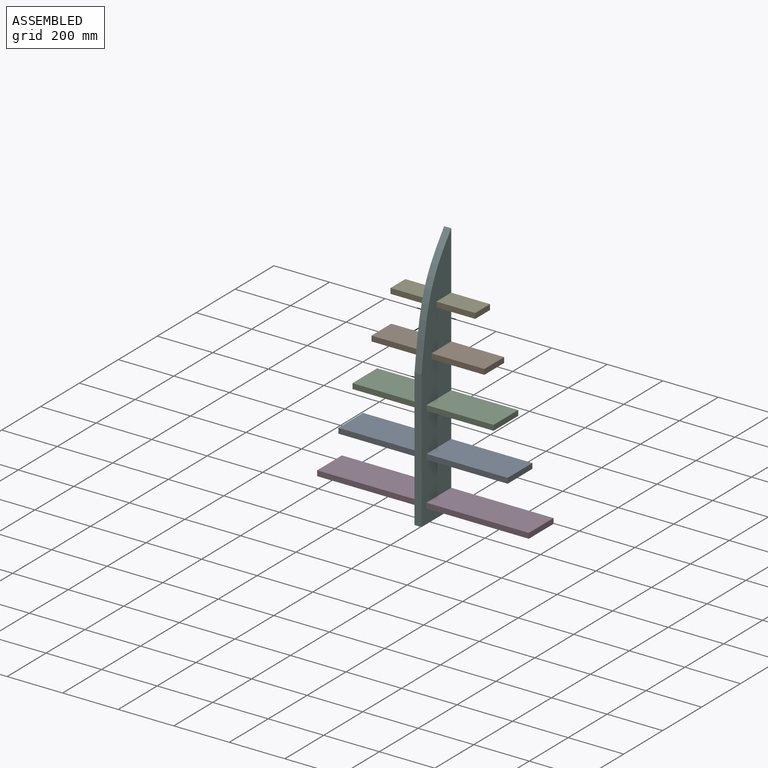
[diagram: assembled view]
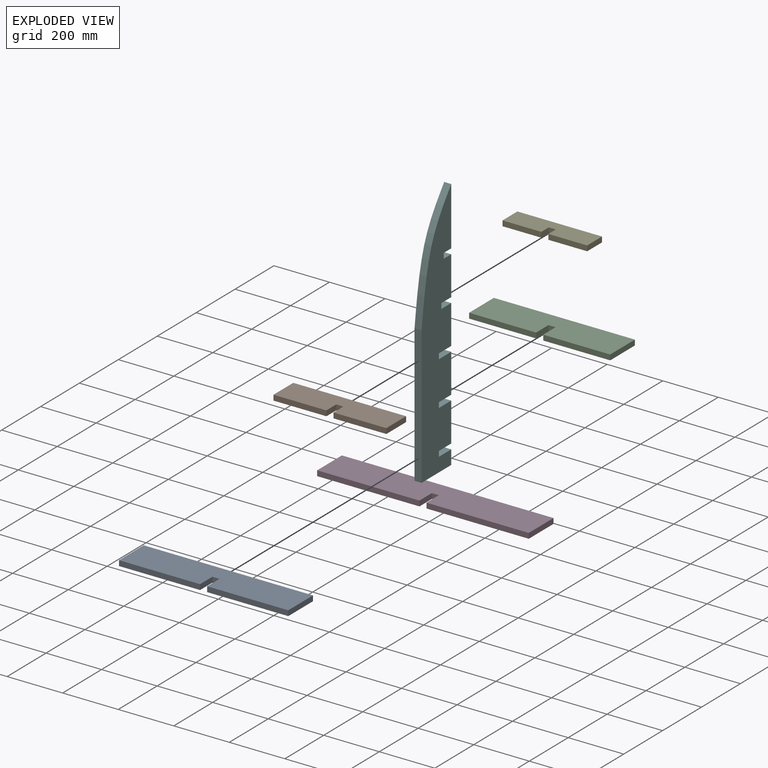
[diagram: exploded view]
GUIDED TOUR — MATED ASSEMBLY (Onshape document f6a99f685c1723dabd99fce3, AutoMate assembly f6a99f685c1723dabd99fce3_4dc6c312e2f48edcb0dcd2f4_e3d09a4b84ab226564b0cf3a_default)

This assembly has 6 components, labeled P0..P5 below (a component is one placed occurrence of a part; the same part can appear more than once), held together by 5 mates. A mate is a constraint between two components; its type names the relative motion it leaves free:
  PLANAR — leaves sliding in the plane through the listed point (normal = the listed direction) and rotation about that normal free.
Axis/direction vectors are unit vectors and 'through' points are millimeter coordinates, both in the assembly's world frame.

MATES
  1. PLANAR "Planar 1": P3 <-> P5, direction (0.000, -1.000, 0.000) through (12.70, 12.70, -396.88) mm
  2. PLANAR "Planar 4": P1 <-> P5, direction (0.000, -1.000, 0.000) through (12.70, 25.40, 79.37) mm
  3. PLANAR "Planar 5": P4 <-> P5, direction (0.000, -1.000, 0.000) through (12.70, 38.10, 238.12) mm
  4. PLANAR "Planar 2": P0 <-> P5, direction (0.000, -1.000, 0.000) through (12.70, 12.70, -238.13) mm
  5. PLANAR "Planar 3": P2 <-> P5, direction (0.000, -1.000, 0.000) through (12.70, 12.70, -79.38) mm

ASSEMBLY ORDER
  1. P3 — the base component [order verified]
  2. P0 [order verified]
  3. P2 [order verified]
  4. P5 [order verified]
  5. P1 [order verified]
  6. P4 [order verified]
Order-tag legend:
  [order verified] — this step's position reverses a verified removal order: the component was checked to insert without passing through the ones already placed.

Of the 6 components, 1 carries the full construction recipe — the FeatureScript program that regenerates the part's solid from scratch; the rest are supplied as boundary geometry only.
Each toured component is shown spotlighted twice — in the assembled view, then in the exploded view, where a leader line traces a displaced component back to its assembled socket (saturated green if recipe-attached, orange if geometry-only; every other component desaturated gray) — followed by its recipe or geometry summary and the mates that hold it.
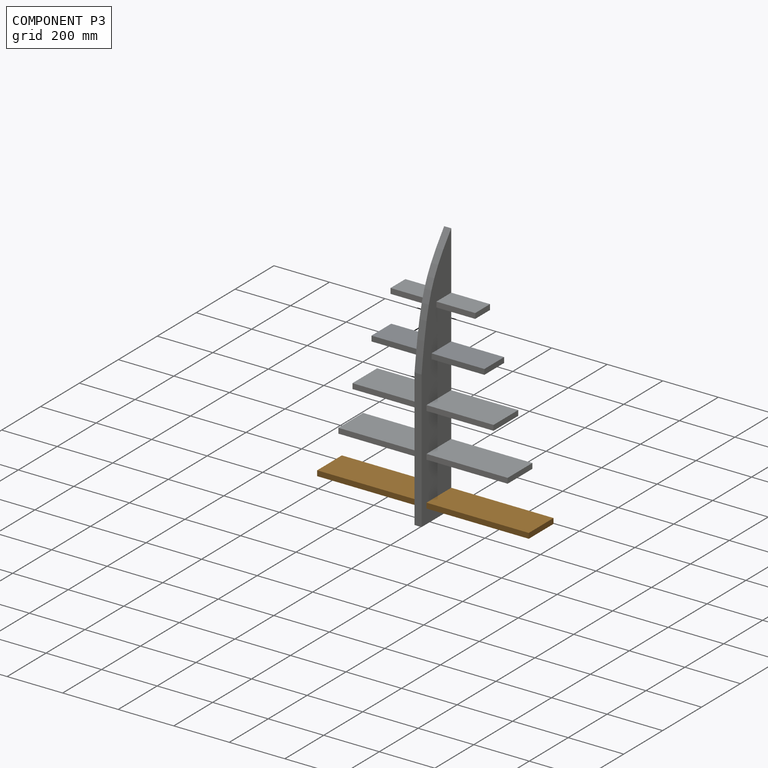
[diagram: component P3 — assembled]
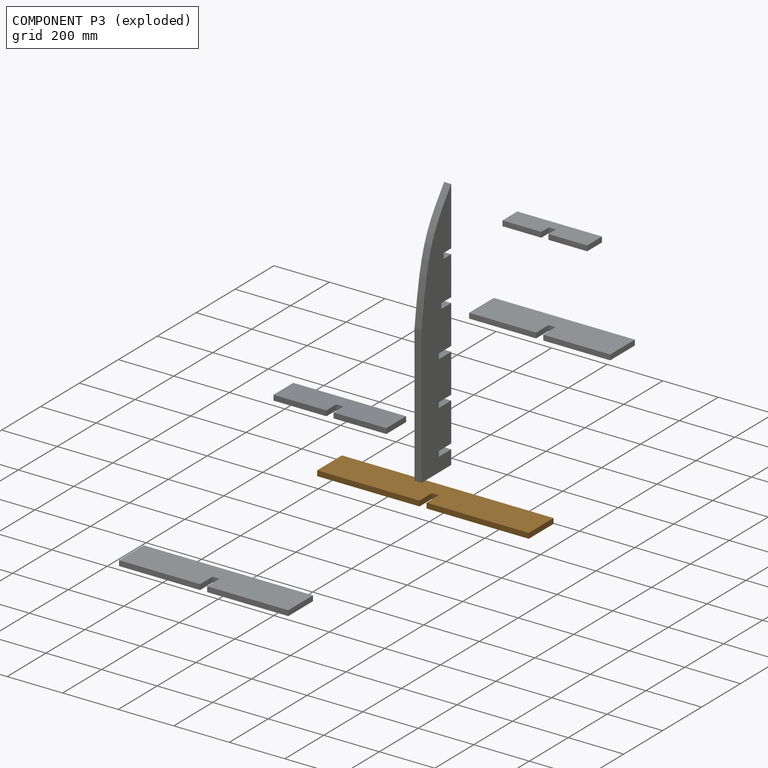
[diagram: component P3 — exploded]
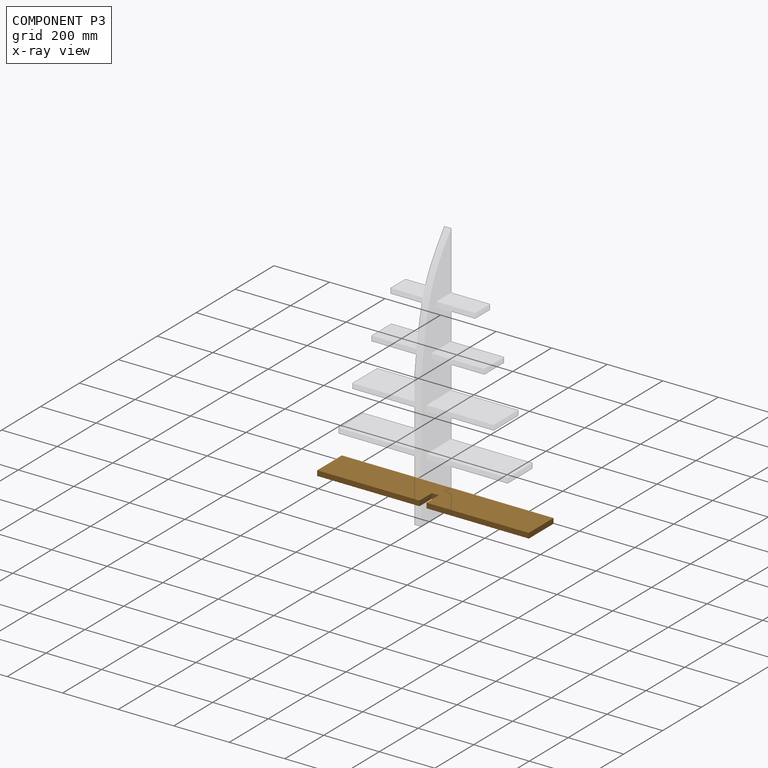
[diagram: component P3 — x-ray view]
COMPONENT P3 — geometry summary (no construction recipe available for this part):
  bounding box: 762.0 x 127.0 x 19.1 mm
  B-rep topology: 1 solid, 10 faces, 48 edges
  volume: 1812819 mm^3 (98% of its bounding box)
  symmetry: 2-fold rotationally symmetric about the y axis; mirror-symmetric across its x mid-plane, z mid-plane
Held by: PLANAR mate "Planar 1" to P5.
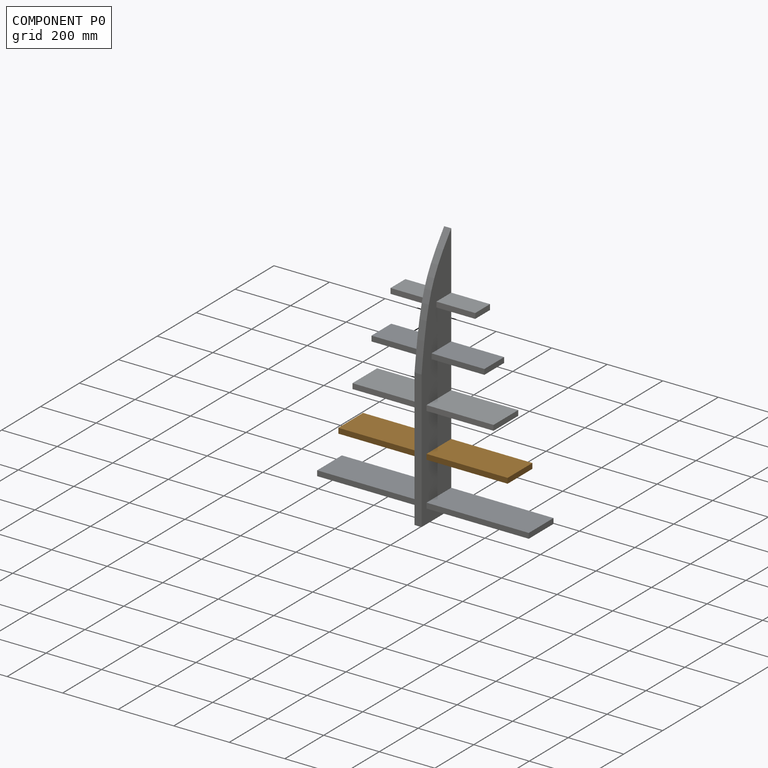
[diagram: component P0 — assembled]
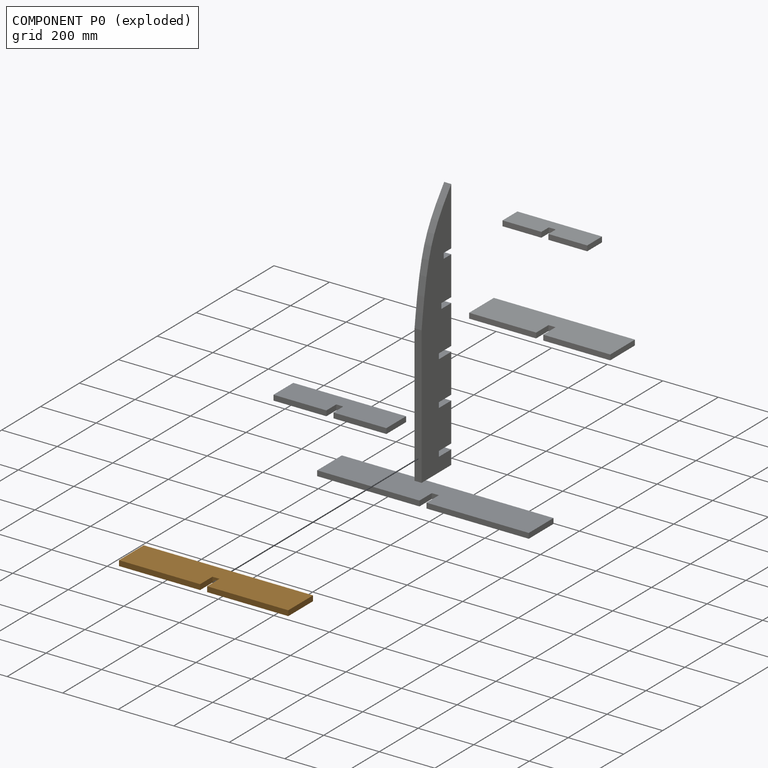
[diagram: component P0 — exploded]
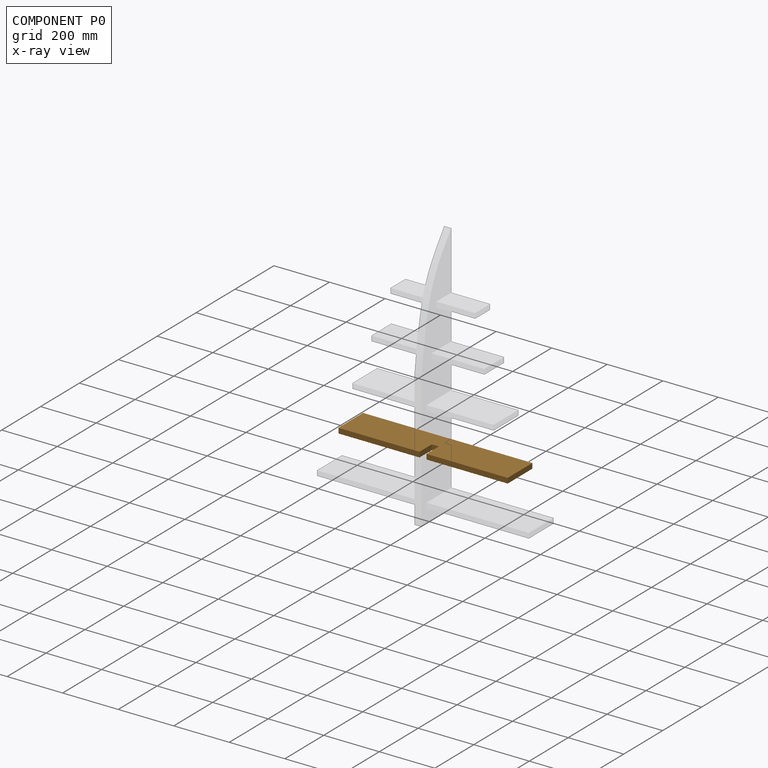
[diagram: component P0 — x-ray view]
COMPONENT P0 — geometry summary (no construction recipe available for this part):
  bounding box: 609.6 x 127.0 x 19.1 mm
  B-rep topology: 1 solid, 10 faces, 48 edges
  volume: 1444110 mm^3 (98% of its bounding box)
  symmetry: 2-fold rotationally symmetric about the y axis; mirror-symmetric across its x mid-plane, z mid-plane
Held by: PLANAR mate "Planar 2" to P5.
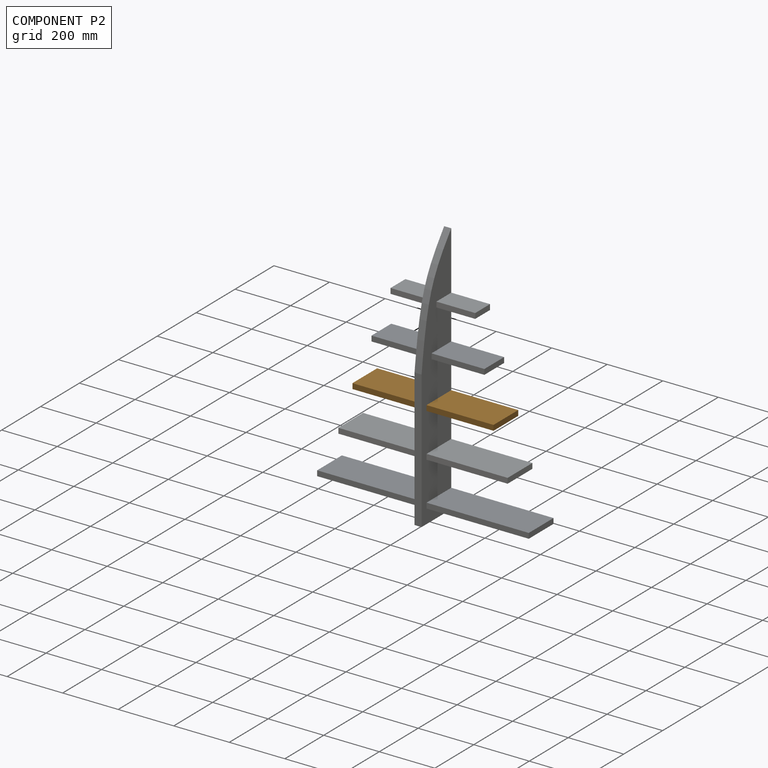
[diagram: component P2 — assembled]
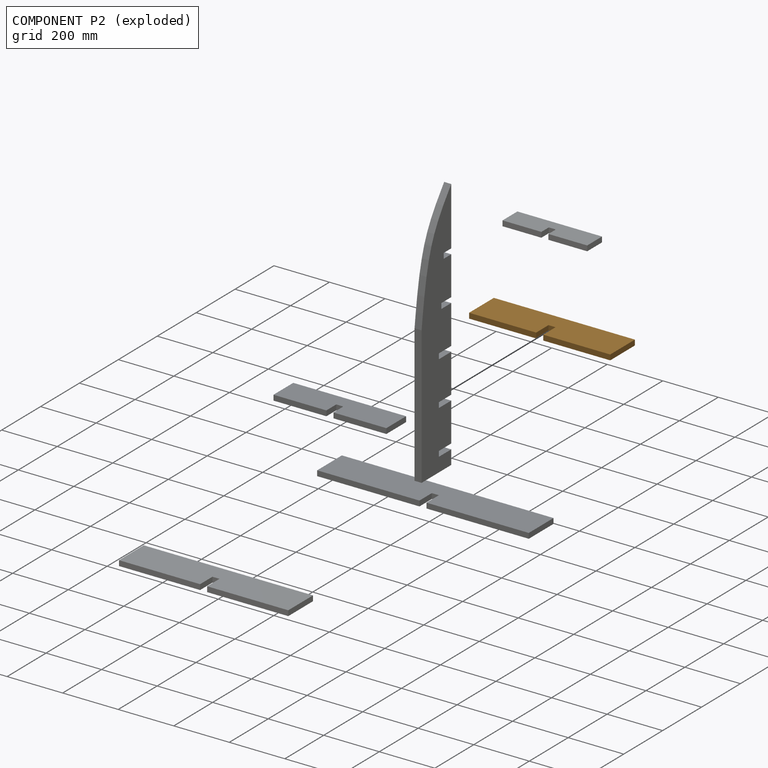
[diagram: component P2 — exploded]
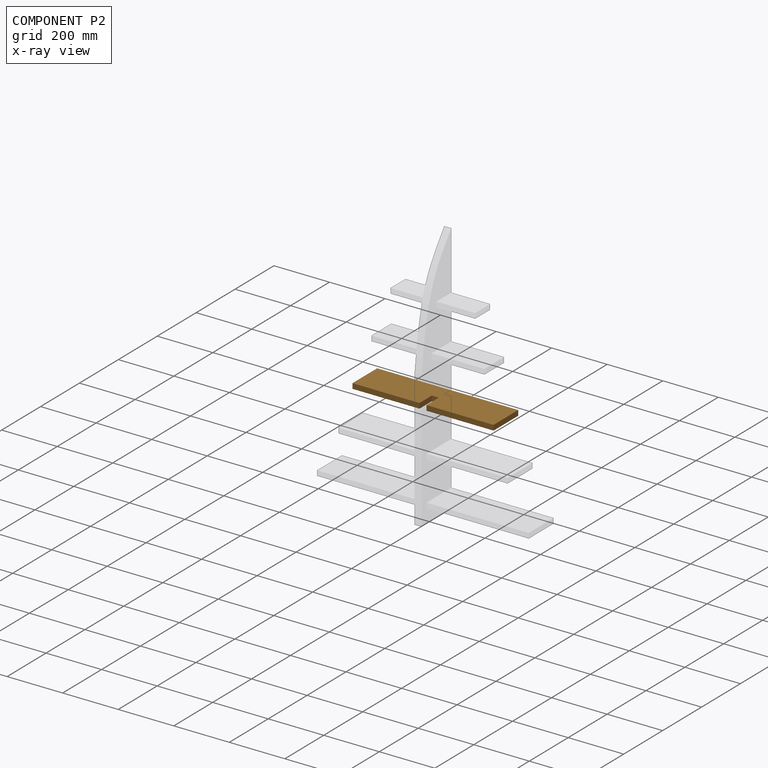
[diagram: component P2 — x-ray view]
COMPONENT P2 — geometry summary (no construction recipe available for this part):
  bounding box: 508.0 x 127.0 x 19.1 mm
  B-rep topology: 1 solid, 10 faces, 48 edges
  volume: 1198304 mm^3 (97% of its bounding box)
  symmetry: 2-fold rotationally symmetric about the y axis; mirror-symmetric across its x mid-plane, z mid-plane
Held by: PLANAR mate "Planar 3" to P5.
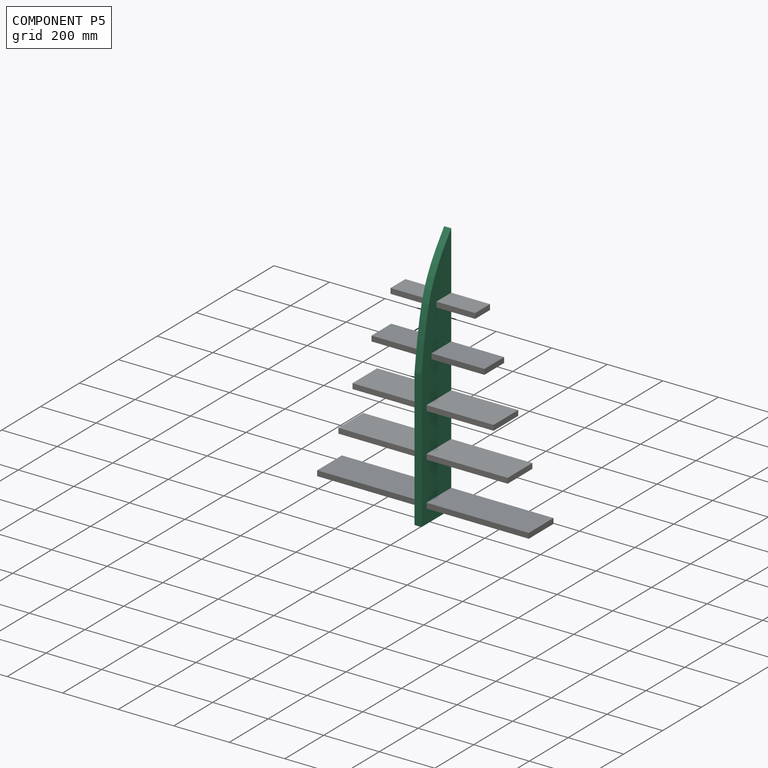
[diagram: component P5 — assembled]
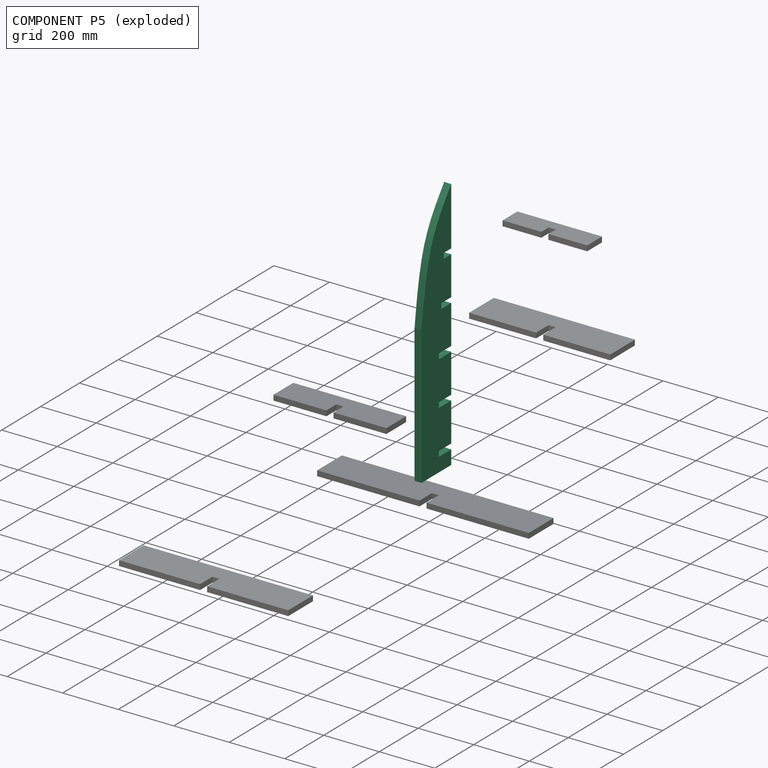
[diagram: component P5 — exploded]
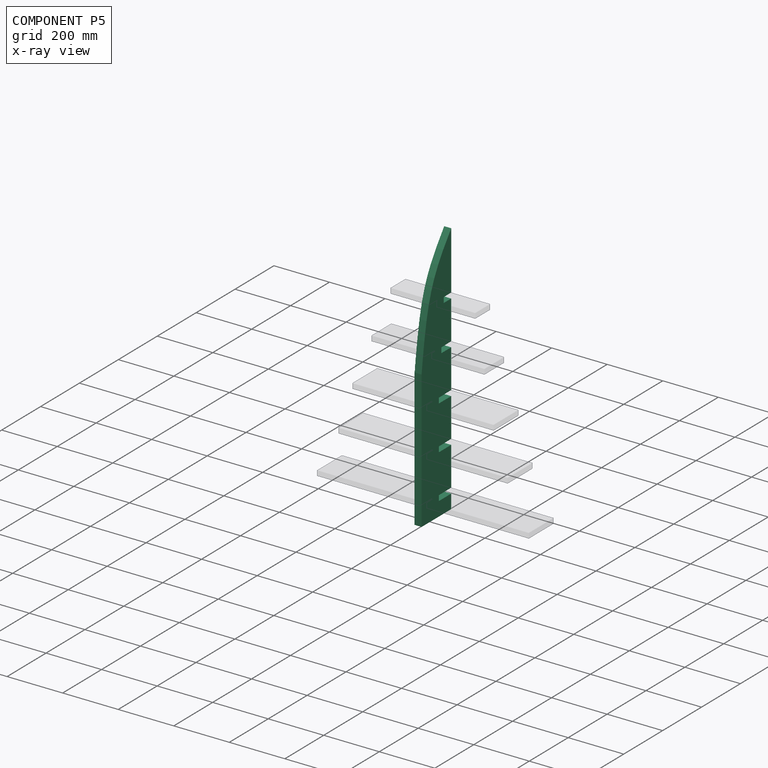
[diagram: component P5 — x-ray view]
COMPONENT P5 — recipe-attached (CADFS 00295261, mesh-verified: the recipe's output STEP matches this component's geometry to below the mesh-comparison resolution (tessellation chordal tolerance ~1.39 mm)).
Held by: PLANAR mate "Planar 1" to P3; PLANAR mate "Planar 4" to P1; PLANAR mate "Planar 5" to P4; PLANAR mate "Planar 2" to P0; PLANAR mate "Planar 3" to P2.
Construction recipe (FeatureScript — the CAD program that rebuilds this solid; sketch coordinates are in the units given by the * unit suffixes, e.g. mm):

FeatureScript 1511;
import(path : "onshape/std/geometry.fs", version : "1511.0");
import(path : "onshape/std/common.fs", version : "1511.0");
const mm = millimeter;
const VERTEX = EntityType.VERTEX;
const EDGE = EntityType.EDGE;
const FACE = EntityType.FACE;
const BODY = EntityType.BODY;
function v(x, y){return vector(x, y);}
function OD(order){return orderDisambiguation(order);}
function OSD(set){return originalSetDisambiguation(set);}
function TD(topology){return topologyDisambiguation(topology);}
function TDD(query){return trueDependencyDisambiguation(query);}
function sQuery(a, b, c) {return sketchEntityQuery(a, b, c);}

annotation { "Feature Type Name" : "Feature", "Feature Type Description" : "" }
export const myFeature = defineFeature(function(context is Context, id is Id, definition is map)
    precondition{}
    {
        {
            var Q0;
            Q0=qCreatedBy(makeId("Right.planeOp"),FACE);
            var sketch = newSketch(context, id + "F0", { "sketchPlane" : qUnion([Q0])});
            skLineSegment(sketch, "E0.bottom", {"start": v(76.2, -457.2) * mm, "end": v(-76.2, -457.2) * mm});
            skLineSegment(sketch, "E0.left", {"start": v(76.2, -457.2) * mm, "end": v(76.2, -406.4) * mm});
            skLineSegment(sketch, "E0.right", {"start": v(-76.2, -457.2) * mm, "end": v(-76.2, 39.03) * mm});
            skPoint(sketch, "E0.middle", {"position": v(0, 0) * mm});
            skFitSpline(sketch, "E1", {"points": [v(76.2, 457.2) * mm, v(-22.2, 301.87) * mm, v(-76.2, 39.03) * mm], "startDerivative": vector(-244.1, -311.85) * mm, "endDerivative": vector(-66.3, -518) * mm});
            skPoint(sketch, "E2.orphan", {"position": v(-76.2, 457.2) * mm});
            skLineSegment(sketch, "E3.bottom", {"start": v(76.2, -387.35) * mm, "end": v(12.7, -387.35) * mm});
            skLineSegment(sketch, "E3.top", {"start": v(76.2, -406.4) * mm, "end": v(12.7, -406.4) * mm});
            skLineSegment(sketch, "E3.right", {"start": v(12.7, -387.35) * mm, "end": v(12.7, -406.4) * mm});
            skLineSegment(sketch, "E4.bottom", {"start": v(76.2, -247.65) * mm, "end": v(12.7, -247.65) * mm});
            skLineSegment(sketch, "E4.top", {"start": v(76.2, -228.6) * mm, "end": v(12.7, -228.6) * mm});
            skLineSegment(sketch, "E4.right", {"start": v(12.7, -247.65) * mm, "end": v(12.7, -228.6) * mm});
            skLineSegment(sketch, "E5.bottom", {"start": v(76.2, -88.9) * mm, "end": v(12.7, -88.9) * mm});
            skLineSegment(sketch, "E5.top", {"start": v(76.2, -69.85) * mm, "end": v(12.7, -69.85) * mm});
            skLineSegment(sketch, "E5.right", {"start": v(12.7, -88.9) * mm, "end": v(12.7, -69.85) * mm});
            skLineSegment(sketch, "E6.bottom", {"start": v(76.2, 69.85) * mm, "end": v(25.4, 69.85) * mm});
            skLineSegment(sketch, "E6.top", {"start": v(76.2, 88.9) * mm, "end": v(25.4, 88.9) * mm});
            skLineSegment(sketch, "E6.right", {"start": v(25.4, 69.85) * mm, "end": v(25.4, 88.9) * mm});
            skLineSegment(sketch, "E7.bottom", {"start": v(76.2, 228.6) * mm, "end": v(38.1, 228.6) * mm});
            skLineSegment(sketch, "E7.top", {"start": v(76.2, 247.65) * mm, "end": v(38.1, 247.65) * mm});
            skLineSegment(sketch, "E7.right", {"start": v(38.1, 228.6) * mm, "end": v(38.1, 247.65) * mm});
            skLineSegment(sketch, "E8.trimOffspring", {"start": v(76.2, 247.65) * mm, "end": v(76.2, 457.2) * mm});
            skLineSegment(sketch, "E9.trimOffspring", {"start": v(76.2, 88.9) * mm, "end": v(76.2, 228.6) * mm});
            skLineSegment(sketch, "E10.trimOffspring", {"start": v(76.2, -69.85) * mm, "end": v(76.2, 69.85) * mm});
            skLineSegment(sketch, "E11.trimOffspring", {"start": v(76.2, -228.6) * mm, "end": v(76.2, -88.9) * mm});
            skLineSegment(sketch, "E12.trimOffspring", {"start": v(76.2, -387.35) * mm, "end": v(76.2, -247.65) * mm});
            skSolve(sketch);
        }
        {
            var Q0;
            Q0=makeQuery(id+"F0.imprint","IMPRINT",FACE,{"disambiguationData":[TD([[makeQuery(id+"F0.imprint","IMPRINT",EDGE,{"derivedFrom":sQuery(id+"F0.wireOp",EDGE,"E0.bottom")}),-1.0]])]});
            extrude(context, id + "F1", {"entities" : qUnion([Q0]), "depth" : 25.4 * mm});
        }
    });
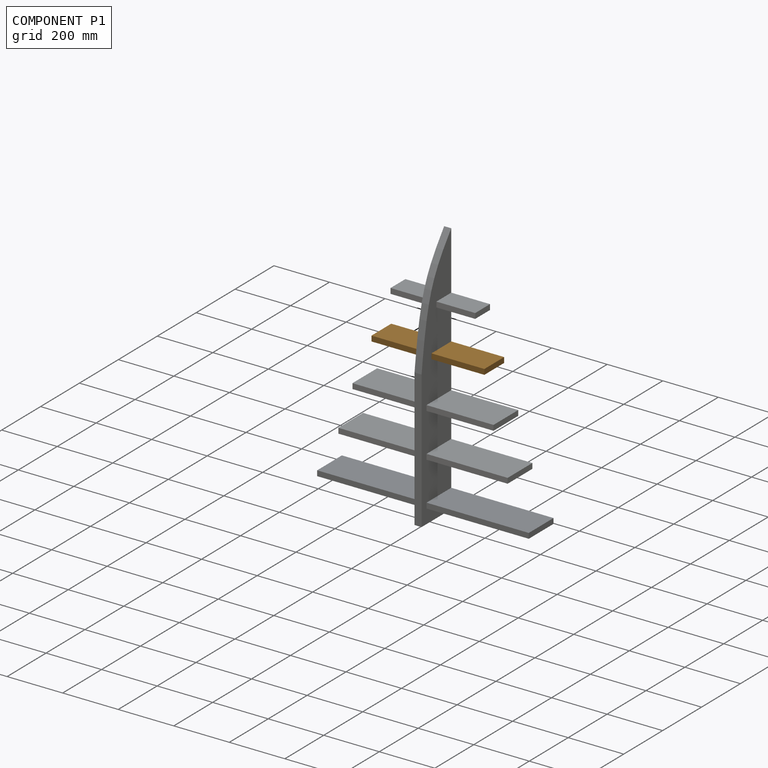
[diagram: component P1 — assembled]
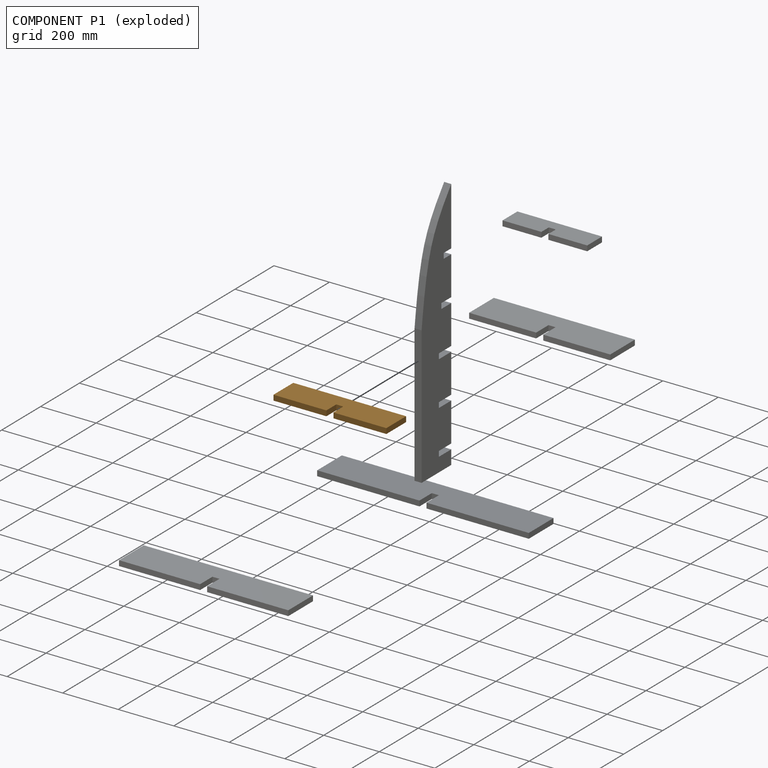
[diagram: component P1 — exploded]
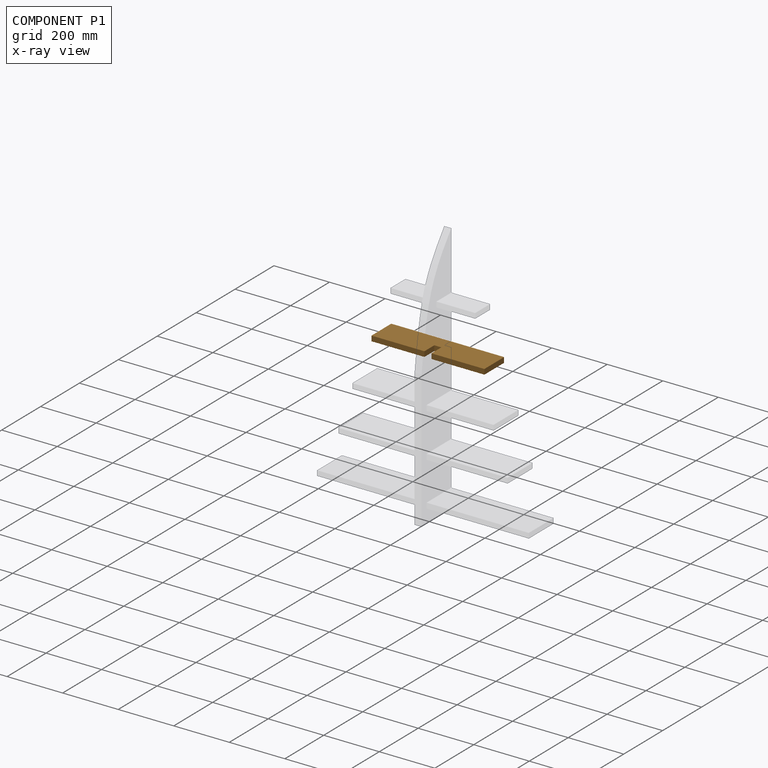
[diagram: component P1 — x-ray view]
COMPONENT P1 — geometry summary (no construction recipe available for this part):
  bounding box: 406.4 x 101.6 x 19.1 mm
  B-rep topology: 1 solid, 10 faces, 48 edges
  volume: 761998 mm^3 (97% of its bounding box)
  symmetry: 2-fold rotationally symmetric about the y axis; mirror-symmetric across its x mid-plane, z mid-plane
Held by: PLANAR mate "Planar 4" to P5.
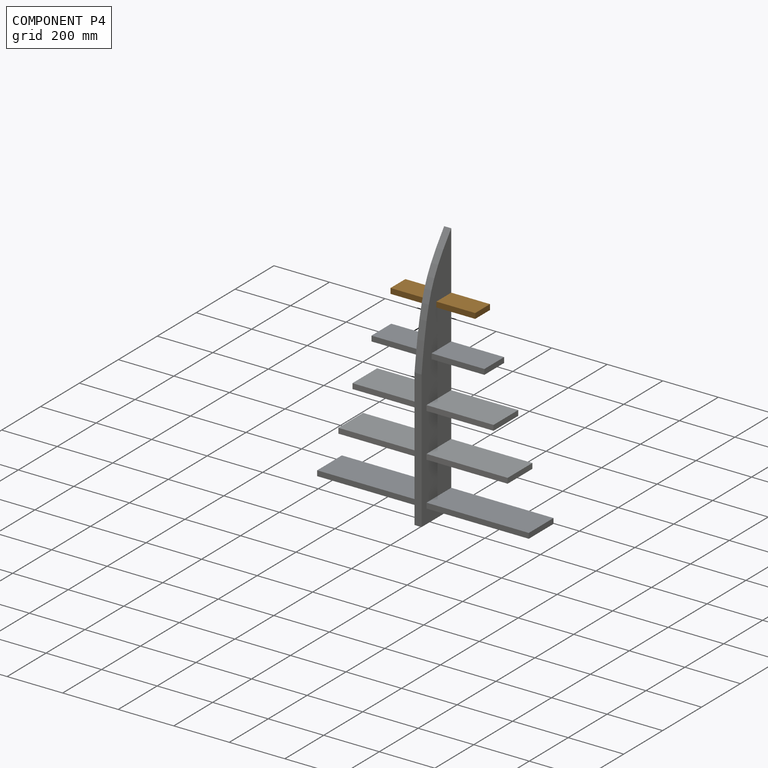
[diagram: component P4 — assembled]
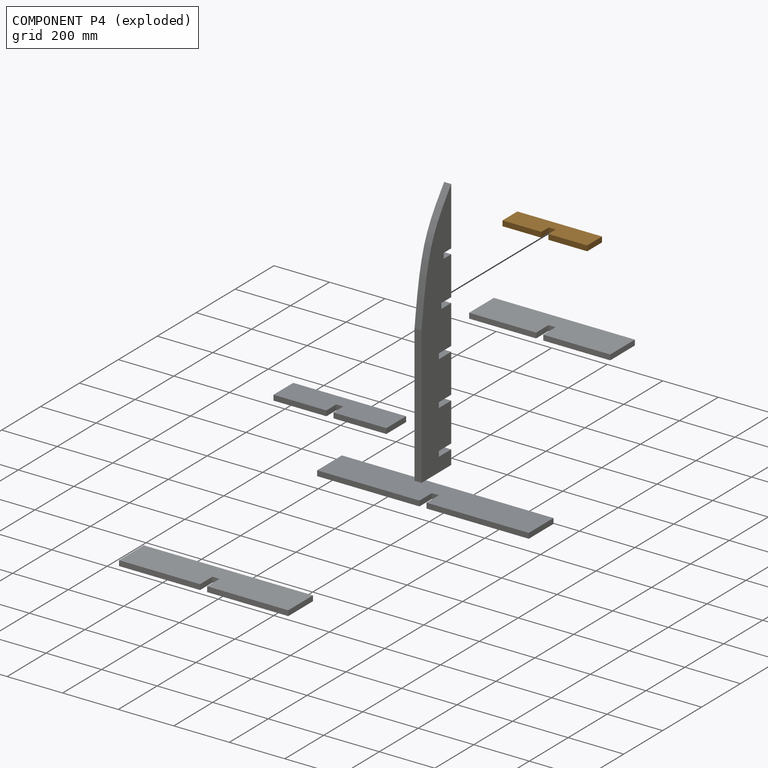
[diagram: component P4 — exploded]
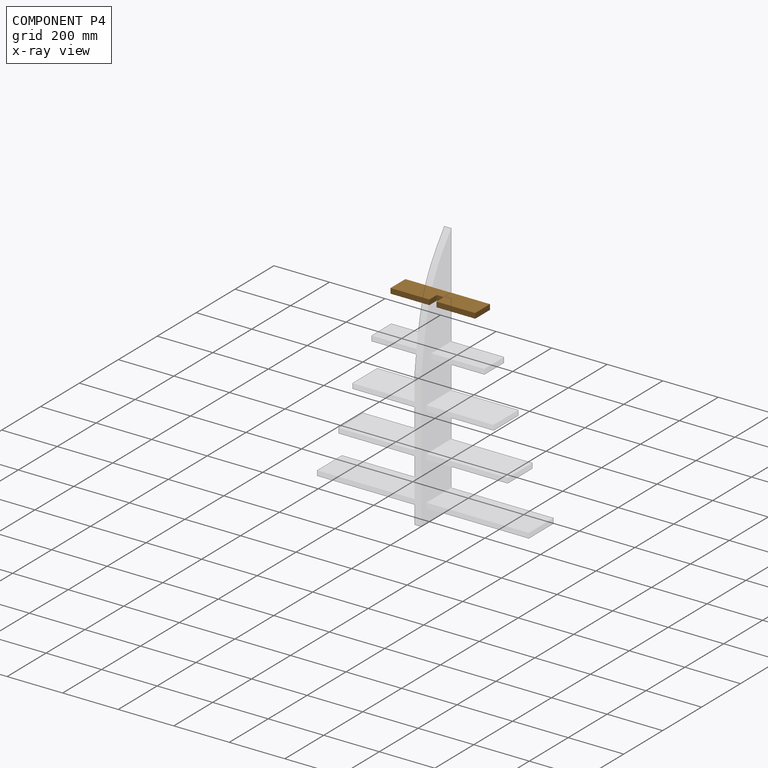
[diagram: component P4 — x-ray view]
COMPONENT P4 — geometry summary (no construction recipe available for this part):
  bounding box: 304.8 x 76.2 x 19.1 mm
  B-rep topology: 1 solid, 10 faces, 48 edges
  volume: 424015 mm^3 (96% of its bounding box)
  symmetry: 2-fold rotationally symmetric about the y axis; mirror-symmetric across its x mid-plane, z mid-plane
Held by: PLANAR mate "Planar 5" to P5.
PROVENANCE & LICENSES
Assembly (occurrences, transforms, mates, per-part STEP geometry): AutoMate dataset, Zenodo record 7776208, CC0.
Construction recipes: CADFS (HuggingFace VladPyatov/CADFS, CC-BY-4.0, layered over the ABC dataset), FeatureScript reconstruction programs keyed by ABC model id.
Join: ABC meta listings map ABC model id -> Onshape documentId; within a shared document, parts are matched by geometric signature (bounding-box dims + volume at 0.1% relative tolerance, exact B-rep face/solid counts).
Verification: 1 of this assembly's 6 components carries a recipe attachment, and every attachment is mesh-verified: the CADFS STEP and the AutoMate member STEP were compared as meshes in their shared local frame (symmetric sampled-point-to-mesh distance); worst across the 1 attachment: below the mesh-comparison resolution (tessellation chordal tolerance ~1.39 mm) on a 927 mm part.
Renders: orthographic iso camera (az 35 / el 25); the floor grid conveys scale (grid pitch printed in each image; no ruler). In the exploded view each component is displaced by its stored offset vector: the offsets alone carry the explosion direction (mate normal/axis signs are not orientation cues and do not encode it), and separation distances are assigned per mate-chain, not proportionally to assembly-order depth.
